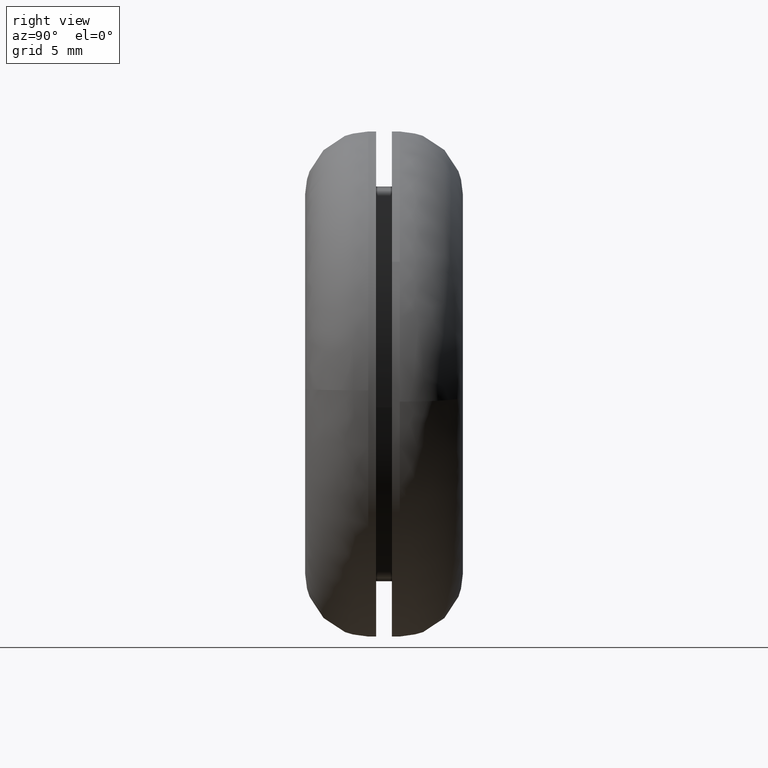
[diagram: clean part render]
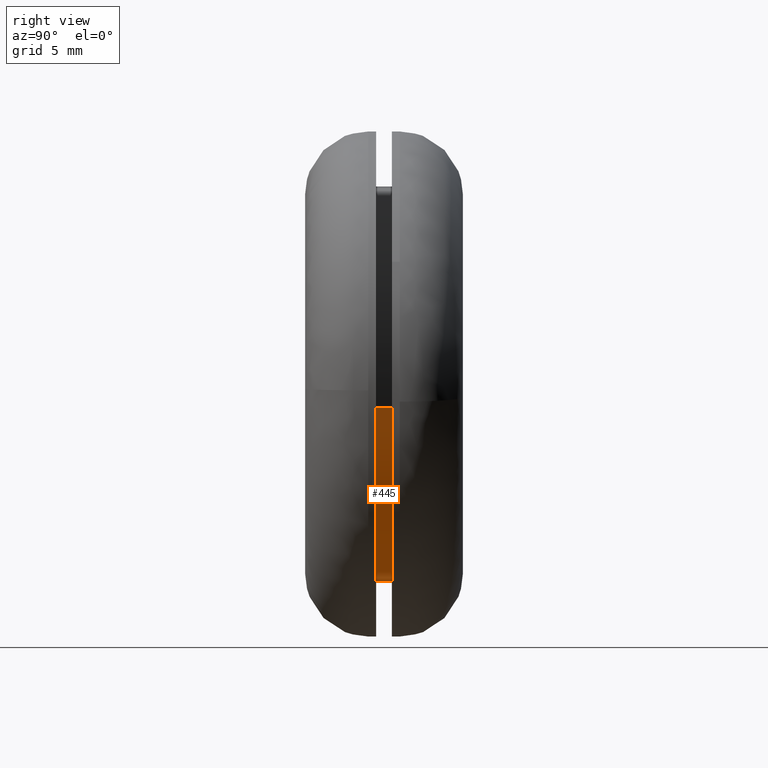
[diagram: same view with one face highlighted and labeled with its STEP entity id]
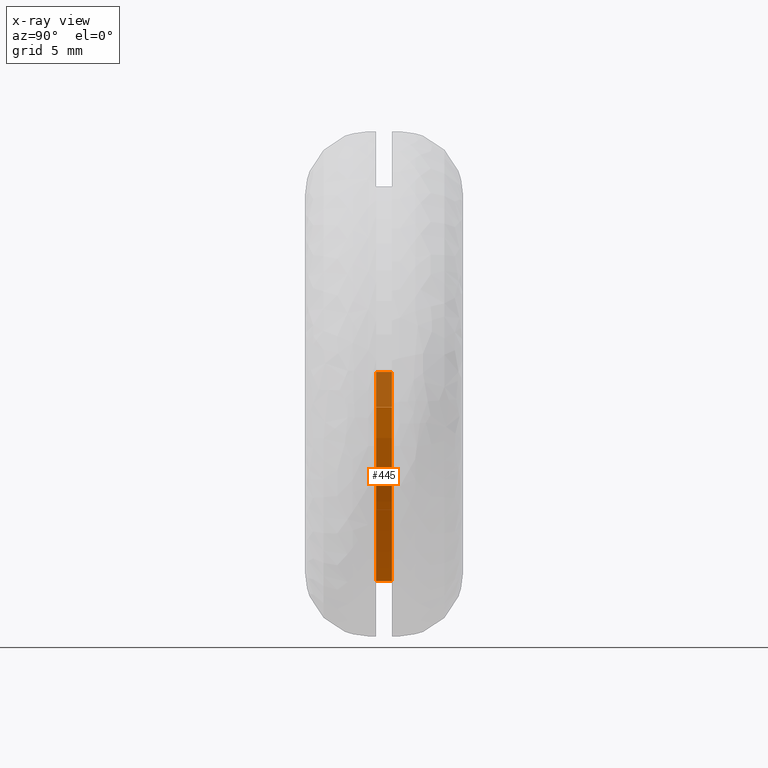
[diagram: x-ray of the same camera — body ghosted, the highlighted face saturated]
A machine part, right view. The second image highlights one B-rep face of the part: STEP entity #445.
The next image is the same camera in x-ray: the body ghosted, the highlighted face saturated — about 17% of this face is hidden behind the body in this view.
In plain terms, the highlighted face is a freeform B-spline surface patch.
Its self-contained STEP definition (entity closure, byte-faithful):
#282=CARTESIAN_POINT('',(12.412620618392291,4.500000000000158,-1.475414986941843));
#283=VERTEX_POINT('',#282);
#301=CARTESIAN_POINT('',(12.412620599407919,5.500000000000000,-1.475415146658134));
#302=VERTEX_POINT('',#301);
#303=CARTESIAN_POINT('',(12.412620599407919,5.500000000000000,-1.475415146658134));
#304=CARTESIAN_POINT('',(12.412620618392291,4.500000000000158,-1.475414986941843));
#305=QUASI_UNIFORM_CURVE('',1,(#303,#304),.UNSPECIFIED.,.F.,.U.);
#306=EDGE_CURVE('',#302,#283,#305,.T.);
#325=CARTESIAN_POINT('',(-12.476685302680121,5.500000000000000,0.763101472844820));
#326=VERTEX_POINT('',#325);
#340=CARTESIAN_POINT('',(-12.476685306703670,4.500000000000192,0.763101407059438));
#341=VERTEX_POINT('',#340);
#342=CARTESIAN_POINT('',(-12.476685302680121,5.500000000000000,0.763101472844820));
#343=CARTESIAN_POINT('',(-12.476685306703670,4.500000000000192,0.763101407059438));
#344=QUASI_UNIFORM_CURVE('',1,(#342,#343),.UNSPECIFIED.,.F.,.U.);
#345=EDGE_CURVE('',#326,#341,#344,.T.);
#363=CARTESIAN_POINT('',(-12.476684980273340,5.525000000000001,0.763106744185712));
#364=CARTESIAN_POINT('',(-13.239791724459048,5.525000000000000,-11.713578236087622));
#365=CARTESIAN_POINT('',(-0.763106744185712,5.525000000000001,-12.476684980273340));
#366=CARTESIAN_POINT('',(11.019293635493762,5.525000000000000,-13.197327459156595));
#367=CARTESIAN_POINT('',(12.412619079545834,5.525000000000002,-1.475427933209482));
#368=CARTESIAN_POINT('',(-12.476684980273340,4.474374999999999,0.763106744185712));
#369=CARTESIAN_POINT('',(-13.239791724459048,4.474374999999999,-11.713578236087622));
#370=CARTESIAN_POINT('',(-0.763106744185712,4.474374999999999,-12.476684980273340));
#371=CARTESIAN_POINT('',(11.019293635493762,4.474374999999999,-13.197327459156595));
#372=CARTESIAN_POINT('',(12.412619079545834,4.474374999999999,-1.475427933209482));
#380=(BOUNDED_SURFACE()B_SPLINE_SURFACE(2,1,((#363,#368),(#364,#369),(#365,#370),(#366,#371),(#367,#372)),.UNSPECIFIED.,.F.,.F.,.U.)B_SPLINE_SURFACE_WITH_KNOTS((3,2,3),(2,2),(0.0,20.710678118654752,40.592929112563311),(0.0,1.0),.UNSPECIFIED.)GEOMETRIC_REPRESENTATION_ITEM()RATIONAL_B_SPLINE_SURFACE(((1.0,1.0),(0.707106781186548,0.707106781186548),(1.0,1.0),(0.718822509939086,0.718822509939086),(0.977505800795127,0.977505800795127)))REPRESENTATION_ITEM('')SURFACE());
#381=CARTESIAN_POINT('',(0.0,4.500000000000000,-12.500000000000000));
#382=VERTEX_POINT('',#381);
#383=CARTESIAN_POINT('',(0.0,4.500000000000000,-12.500000000000000));
#384=CARTESIAN_POINT('',(11.102193235403265,4.500000000000000,-12.500000000000000));
#385=CARTESIAN_POINT('',(12.412620618392285,4.500000000000158,-1.475414986941843));
#393=(BOUNDED_CURVE()B_SPLINE_CURVE(2,(#383,#384,#385),.UNSPECIFIED.,.F.,.U.)B_SPLINE_CURVE_WITH_KNOTS((3,3),(0.0,0.229562649784764),.UNSPECIFIED.)CURVE()GEOMETRIC_REPRESENTATION_ITEM()RATIONAL_B_SPLINE_CURVE((1.0,0.731050626340781,0.956027099682864))REPRESENTATION_ITEM(''));
#394=EDGE_CURVE('',#382,#283,#393,.T.);
#395=ORIENTED_EDGE('',*,*,#394,.F.);
#396=CARTESIAN_POINT('',(-12.476685306703670,4.500000000000192,0.763101407059438));
#397=CARTESIAN_POINT('',(-12.499999999999996,4.500000000000001,0.381906865186920));
#398=CARTESIAN_POINT('',(-12.500000000000000,4.500000000000000,-3.061516E-016));
#399=CARTESIAN_POINT('',(-12.499999999999998,4.500000000000000,-12.499999999999998));
#400=CARTESIAN_POINT('',(0.0,4.500000000000000,-12.500000000000000));
#408=(BOUNDED_CURVE()B_SPLINE_CURVE(2,(#396,#397,#398,#399,#400),.UNSPECIFIED.,.F.,.U.)B_SPLINE_CURVE_WITH_KNOTS((3,2,3),(0.739333036051963,0.750000000000000,1.0),.UNSPECIFIED.)CURVE()GEOMETRIC_REPRESENTATION_ITEM()RATIONAL_B_SPLINE_CURVE((0.976072199862122,0.987502874377170,1.0,0.707106781186547,1.0))REPRESENTATION_ITEM(''));
#409=EDGE_CURVE('',#341,#382,#408,.T.);
#410=ORIENTED_EDGE('',*,*,#409,.F.);
#411=ORIENTED_EDGE('',*,*,#345,.F.);
#412=CARTESIAN_POINT('',(0.0,5.500000000000000,-12.500000000000000));
#413=VERTEX_POINT('',#412);
#414=CARTESIAN_POINT('',(-12.476685302680121,5.500000000000000,0.763101472844820));
#415=CARTESIAN_POINT('',(-12.499999999999998,5.500000000000000,0.381906898171838));
#416=CARTESIAN_POINT('',(-12.500000000000000,5.500000000000000,-3.061516E-016));
#417=CARTESIAN_POINT('',(-12.499999999999998,5.500000000000000,-12.499999999999998));
#418=CARTESIAN_POINT('',(0.0,5.500000000000000,-12.500000000000000));
#426=(BOUNDED_CURVE()B_SPLINE_CURVE(2,(#414,#415,#416,#417,#418),.UNSPECIFIED.,.F.,.U.)B_SPLINE_CURVE_WITH_KNOTS((3,2,3),(0.739333035142182,0.750000000000000,1.0),.UNSPECIFIED.)CURVE()GEOMETRIC_REPRESENTATION_ITEM()RATIONAL_B_SPLINE_CURVE((0.976072197912286,0.987502873311294,1.0,0.707106781186547,1.0))REPRESENTATION_ITEM(''));
#427=EDGE_CURVE('',#326,#413,#426,.T.);
#428=ORIENTED_EDGE('',*,*,#427,.T.);
#429=CARTESIAN_POINT('',(0.0,5.500000000000000,-12.500000000000000));
#430=CARTESIAN_POINT('',(11.102193091542953,5.500000000000000,-12.500000000000000));
#431=CARTESIAN_POINT('',(12.412620599407926,5.500000000000000,-1.475415146658134));
#439=(BOUNDED_CURVE()B_SPLINE_CURVE(2,(#429,#430,#431),.UNSPECIFIED.,.F.,.U.)B_SPLINE_CURVE_WITH_KNOTS((3,3),(0.0,0.229562647610156),.UNSPECIFIED.)CURVE()GEOMETRIC_REPRESENTATION_ITEM()RATIONAL_B_SPLINE_CURVE((1.0,0.731050628888492,0.956027095420537))REPRESENTATION_ITEM(''));
#440=EDGE_CURVE('',#413,#302,#439,.T.);
#441=ORIENTED_EDGE('',*,*,#440,.T.);
#442=ORIENTED_EDGE('',*,*,#306,.T.);
#443=EDGE_LOOP('',(#395,#410,#411,#428,#441,#442));
#444=FACE_OUTER_BOUND('',#443,.T.);
#445=ADVANCED_FACE('',(#444),#380,.T.);